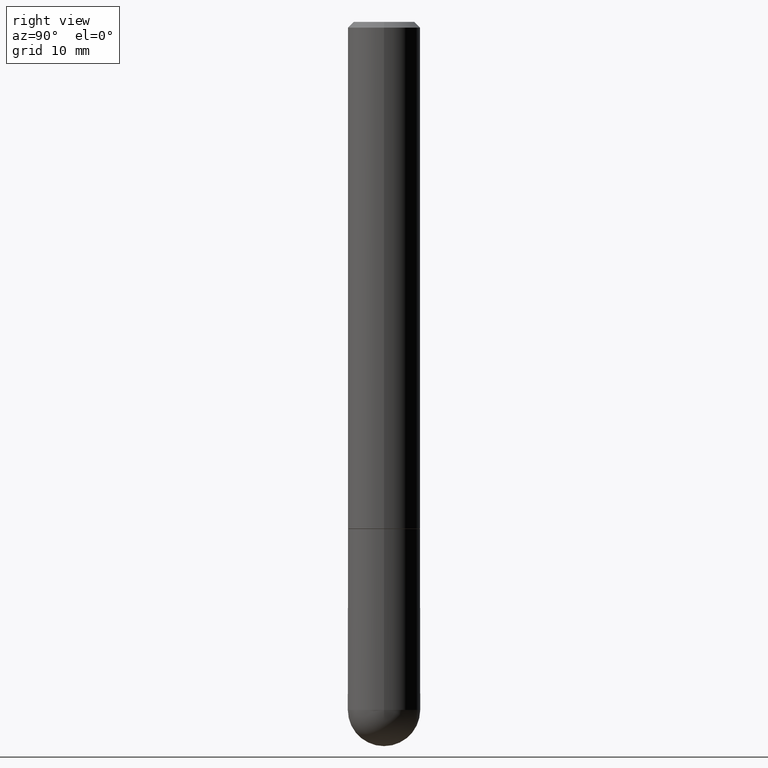
[diagram: clean part render]
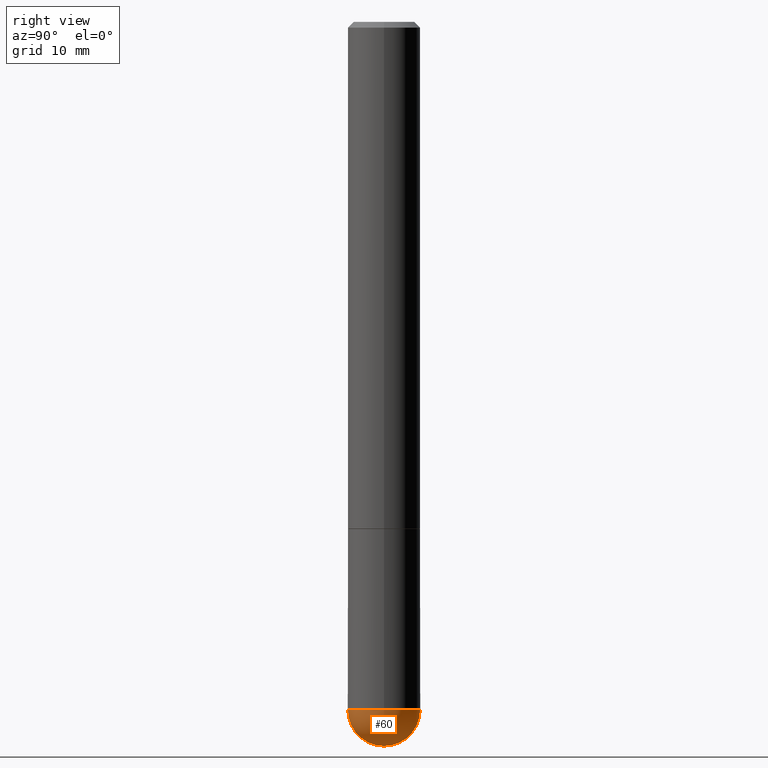
[diagram: same view with one face highlighted and labeled with its STEP entity id]
A machine part, right view. The second image highlights one B-rep face of the part: STEP entity #60.
In plain terms, the highlighted spherical surface has radius 3.175 mm.
Its self-contained STEP definition (entity closure, byte-faithful):
#6 = CARTESIAN_POINT ( 'NONE',  ( 0.1250000000000000000, -8.074050596074771916E-15, -2.375000000000000000 ) ) ;
#16 = CARTESIAN_POINT ( 'NONE',  ( 8.728703347108403340E-16, 0.1249999999999915623, -2.375000000000000888 ) ) ;
#17 = CIRCLE ( 'NONE', #288, 0.1250000000000001943 ) ;
#23 = DIRECTION ( 'NONE',  ( -1.000000000000000000, 7.105427357601001070E-15, -4.926315508542082329E-29 ) ) ;
#36 = VERTEX_POINT ( 'NONE', #77 ) ;
#40 = EDGE_CURVE ( 'NONE', #36, #171, #193, .T. ) ;
#60 = ADVANCED_FACE ( 'NONE', ( #129 ), #379, .T. ) ;
#67 = EDGE_CURVE ( 'NONE', #171, #89, #196, .T. ) ;
#77 = CARTESIAN_POINT ( 'NONE',  ( -8.881784197000694204E-16, -0.1250000000000086320, -2.374999999999999556 ) ) ;
#89 = VERTEX_POINT ( 'NONE', #16 ) ;
#93 = DIRECTION ( 'NONE',  ( -1.000000000000000000, 6.982962677686265922E-15, -4.883557194083112901E-29 ) ) ;
#94 = DIRECTION ( 'NONE',  ( -2.445468806185136597E-29, 3.491481338843145583E-15, 1.000000000000000000 ) ) ;
#95 = EDGE_CURVE ( 'NONE', #347, #36, #17, .T. ) ;
#123 = DIRECTION ( 'NONE',  ( -2.445468806185136597E-29, 3.491481338843145583E-15, 1.000000000000000000 ) ) ;
#129 = FACE_OUTER_BOUND ( 'NONE', #352, .T. ) ;
#135 = DIRECTION ( 'NONE',  ( 6.982962677686265133E-15, 1.000000000000000000, 0.000000000000000000 ) ) ;
#136 = AXIS2_PLACEMENT_3D ( 'NONE', #390, #218, #135 ) ;
#163 = CARTESIAN_POINT ( 'NONE',  ( 5.476868636775814291E-29, -8.766450547892521992E-15, -2.375000000000000000 ) ) ;
#165 = AXIS2_PLACEMENT_3D ( 'NONE', #202, #123, #303 ) ;
#171 = VERTEX_POINT ( 'NONE', #6 ) ;
#174 = ORIENTED_EDGE ( 'NONE', *, *, #95, .F. ) ;
#176 = ORIENTED_EDGE ( 'NONE', *, *, #67, .F. ) ;
#186 = EDGE_CURVE ( 'NONE', #347, #89, #402, .T. ) ;
#193 = CIRCLE ( 'NONE', #165, 0.1250000000000000000 ) ;
#196 = CIRCLE ( 'NONE', #310, 0.1250000000000000000 ) ;
#202 = CARTESIAN_POINT ( 'NONE',  ( 5.807988414689700538E-29, -8.292268179752471696E-15, -2.375000000000000000 ) ) ;
#218 = DIRECTION ( 'NONE',  ( 1.000000000000000000, -6.982962677686265922E-15, 4.883557194083112340E-29 ) ) ;
#236 = ORIENTED_EDGE ( 'NONE', *, *, #40, .F. ) ;
#288 = AXIS2_PLACEMENT_3D ( 'NONE', #163, #23, #360 ) ;
#303 = DIRECTION ( 'NONE',  ( 1.000000000000000000, -6.982962677686270655E-15, 0.000000000000000000 ) ) ;
#306 = CARTESIAN_POINT ( 'NONE',  ( 5.787897026856327965E-29, -9.195231672753244292E-15, -2.500000000000000444 ) ) ;
#310 = AXIS2_PLACEMENT_3D ( 'NONE', #388, #94, #410 ) ;
#330 = AXIS2_PLACEMENT_3D ( 'NONE', #376, #93, #353 ) ;
#347 = VERTEX_POINT ( 'NONE', #306 ) ;
#352 = EDGE_LOOP ( 'NONE', ( #174, #407, #176, #236 ) ) ;
#353 = DIRECTION ( 'NONE',  ( 6.982962677686265922E-15, 1.000000000000000000, -4.370956789862814839E-15 ) ) ;
#360 = DIRECTION ( 'NONE',  ( -7.105427357601000281E-15, -1.000000000000000000, 0.000000000000000000 ) ) ;
#376 = CARTESIAN_POINT ( 'NONE',  ( 5.476868636775814291E-29, -8.766450547892521992E-15, -2.375000000000000000 ) ) ;
#379 = SPHERICAL_SURFACE ( 'NONE', #330, 0.1250000000000001943 ) ;
#388 = CARTESIAN_POINT ( 'NONE',  ( 5.807988414689700538E-29, -8.292268179752471696E-15, -2.375000000000000000 ) ) ;
#390 = CARTESIAN_POINT ( 'NONE',  ( 5.476868636775814291E-29, -8.766450547892521992E-15, -2.375000000000000000 ) ) ;
#402 = CIRCLE ( 'NONE', #136, 0.1250000000000001943 ) ;
#407 = ORIENTED_EDGE ( 'NONE', *, *, #186, .T. ) ;
#410 = DIRECTION ( 'NONE',  ( 1.000000000000000000, -6.982962677686270655E-15, 0.000000000000000000 ) ) ;